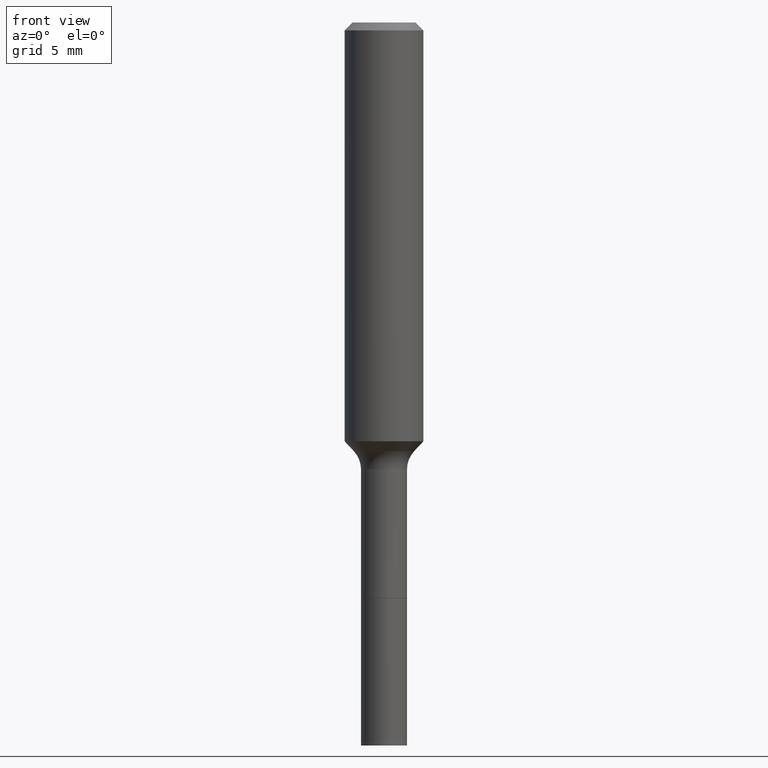
[diagram: clean part render]
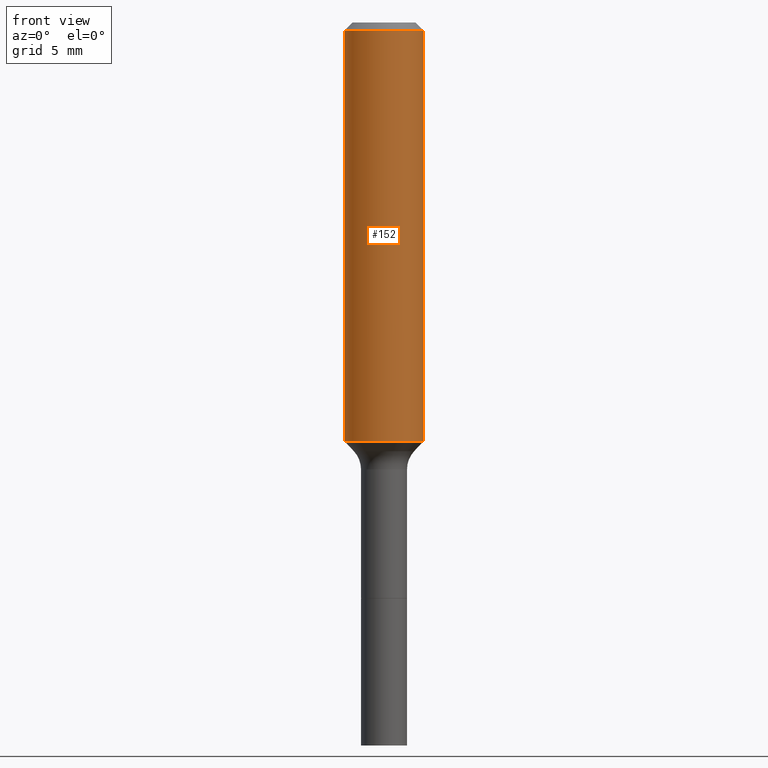
[diagram: same view with one face highlighted and labeled with its STEP entity id]
A machine part, front view. The second image highlights one B-rep face of the part: STEP entity #152.
In plain terms, the highlighted cylindrical surface (partial cylindrical patch) has radius 2.9997 mm, axis along (-0, 0, 1).
Its self-contained STEP definition (entity closure, byte-faithful):
#2 = VECTOR ( 'NONE', #136, 39.37007874015748143 ) ;
#12 = CARTESIAN_POINT ( 'NONE',  ( 0.1181000000000001493, -5.203447587460667215E-15, -1.254126621417589904 ) ) ;
#21 = ORIENTED_EDGE ( 'NONE', *, *, #397, .T. ) ;
#50 = FACE_OUTER_BOUND ( 'NONE', #305, .T. ) ;
#51 = CARTESIAN_POINT ( 'NONE',  ( 3.066927531683072292E-29, -4.378759695225917375E-15, -1.254126621417589904 ) ) ;
#59 = CARTESIAN_POINT ( 'NONE',  ( 0.1180999999999999966, -9.071566814582237199E-16, -0.02362000000000015129 ) ) ;
#71 = CARTESIAN_POINT ( 'NONE',  ( 5.776197320209329284E-31, -8.246878922347561759E-17, -0.02362000000000015129 ) ) ;
#82 = EDGE_CURVE ( 'NONE', #417, #184, #194, .T. ) ;
#117 = AXIS2_PLACEMENT_3D ( 'NONE', #51, #370, #241 ) ;
#125 = DIRECTION ( 'NONE',  ( -2.445468806185136597E-29, 3.491481338843145583E-15, 1.000000000000000000 ) ) ;
#136 = DIRECTION ( 'NONE',  ( -2.445468806185136877E-29, 3.491481338843145188E-15, 1.000000000000000000 ) ) ;
#152 = ADVANCED_FACE ( 'NONE', ( #50 ), #208, .T. ) ;
#170 = EDGE_CURVE ( 'NONE', #261, #184, #378, .T. ) ;
#174 = CARTESIAN_POINT ( 'NONE',  ( -0.1180999999999999966, -1.391463271292017430E-15, -0.02362000000000015129 ) ) ;
#182 = DIRECTION ( 'NONE',  ( 1.000000000000000000, -6.982962677686266711E-15, 4.876176775795936353E-29 ) ) ;
#184 = VERTEX_POINT ( 'NONE', #59 ) ;
#194 = CIRCLE ( 'NONE', #374, 0.1180999999999999966 ) ;
#208 = CYLINDRICAL_SURFACE ( 'NONE', #247, 0.1181000000000000660 ) ;
#219 = VERTEX_POINT ( 'NONE', #490 ) ;
#230 = DIRECTION ( 'NONE',  ( 1.000000000000000000, -6.982962677686266711E-15, 0.000000000000000000 ) ) ;
#241 = DIRECTION ( 'NONE',  ( 1.000000000000000000, -6.982962677686264344E-15, 0.000000000000000000 ) ) ;
#247 = AXIS2_PLACEMENT_3D ( 'NONE', #414, #409, #182 ) ;
#258 = VECTOR ( 'NONE', #419, 39.37007874015748143 ) ;
#261 = VERTEX_POINT ( 'NONE', #12 ) ;
#298 = EDGE_CURVE ( 'NONE', #219, #417, #457, .T. ) ;
#305 = EDGE_LOOP ( 'NONE', ( #438, #21, #448, #345 ) ) ;
#338 = CIRCLE ( 'NONE', #117, 0.1181000000000001493 ) ;
#345 = ORIENTED_EDGE ( 'NONE', *, *, #82, .F. ) ;
#369 = CARTESIAN_POINT ( 'NONE',  ( 0.1181000000000000660, -8.246878922347485584E-16, 5.758764772215003944E-30 ) ) ;
#370 = DIRECTION ( 'NONE',  ( -2.445468806185136597E-29, 3.491481338843145583E-15, 1.000000000000000000 ) ) ;
#374 = AXIS2_PLACEMENT_3D ( 'NONE', #71, #125, #230 ) ;
#378 = LINE ( 'NONE', #369, #258 ) ;
#397 = EDGE_CURVE ( 'NONE', #219, #261, #338, .T. ) ;
#409 = DIRECTION ( 'NONE',  ( -2.445468806185136597E-29, 3.491481338843145583E-15, 1.000000000000000000 ) ) ;
#414 = CARTESIAN_POINT ( 'NONE',  ( 0.000000000000000000, 0.000000000000000000, 0.000000000000000000 ) ) ;
#417 = VERTEX_POINT ( 'NONE', #174 ) ;
#419 = DIRECTION ( 'NONE',  ( -2.445468806185136877E-29, 3.491481338843145188E-15, 1.000000000000000000 ) ) ;
#438 = ORIENTED_EDGE ( 'NONE', *, *, #298, .F. ) ;
#448 = ORIENTED_EDGE ( 'NONE', *, *, #170, .T. ) ;
#457 = LINE ( 'NONE', #498, #2 ) ;
#490 = CARTESIAN_POINT ( 'NONE',  ( -0.1181000000000001493, -3.539608724293237994E-15, -1.254126621417589904 ) ) ;
#498 = CARTESIAN_POINT ( 'NONE',  ( -0.1181000000000000660, 8.391509709326787887E-16, -5.809262341591047287E-30 ) ) ;